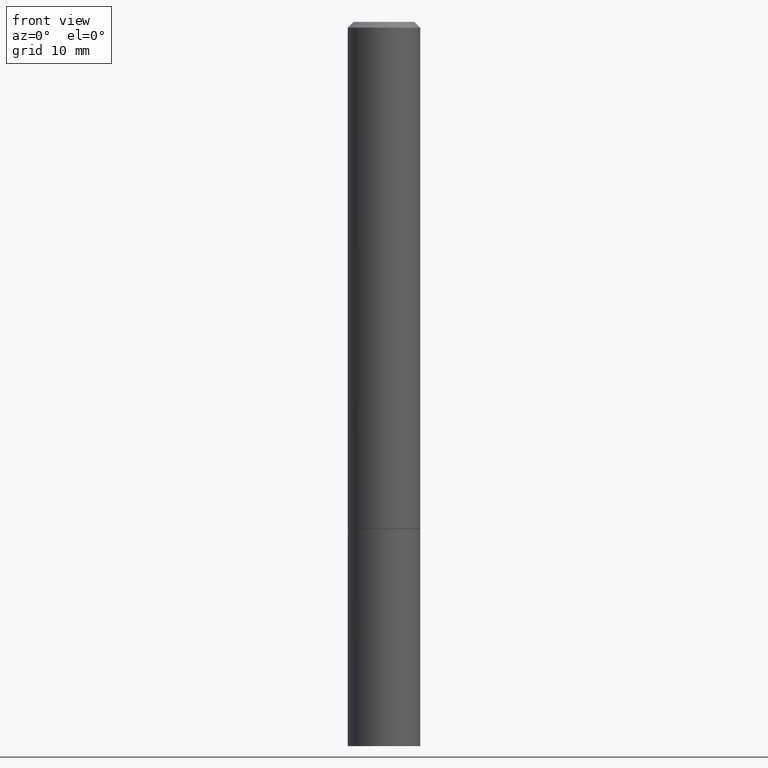
[diagram: clean part render]
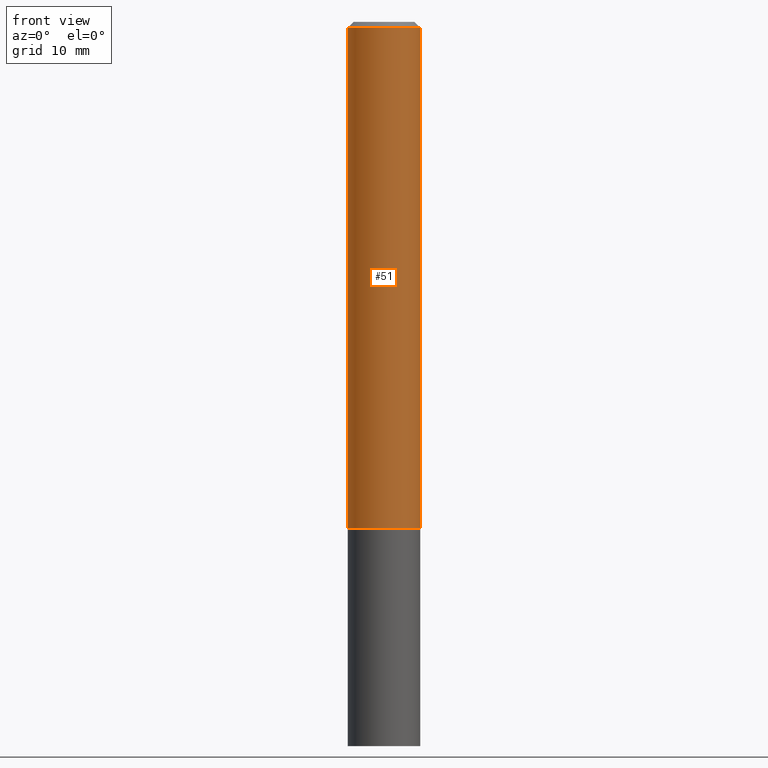
[diagram: same view with one face highlighted and labeled with its STEP entity id]
A machine part, front view. The second image highlights one B-rep face of the part: STEP entity #51.
In plain terms, the highlighted cylindrical surface (edge-blend (fillet) strip) has radius 3.175 mm, axis along (-0, 0, 1).
Its self-contained STEP definition (entity closure, byte-faithful):
#2 = CARTESIAN_POINT ( 'NONE',  ( 4.890937612370281041E-31, -6.982962677686302702E-17, -0.02000000000000003511 ) ) ;
#7 = LINE ( 'NONE', #36, #279 ) ;
#8 = DIRECTION ( 'NONE',  ( -2.445468806185136597E-29, 3.491481338843145583E-15, 1.000000000000000000 ) ) ;
#17 = AXIS2_PLACEMENT_3D ( 'NONE', #210, #41, #212 ) ;
#19 = EDGE_LOOP ( 'NONE', ( #185, #293, #324, #127 ) ) ;
#36 = CARTESIAN_POINT ( 'NONE',  ( -0.1249999999999999029, 8.881784197001245421E-16, -6.148668862818627323E-30 ) ) ;
#38 = DIRECTION ( 'NONE',  ( 1.000000000000000000, -6.982962677686266711E-15, 0.000000000000000000 ) ) ;
#41 = DIRECTION ( 'NONE',  ( -2.445468806185136597E-29, 3.491481338843145583E-15, 1.000000000000000000 ) ) ;
#51 = ADVANCED_FACE ( 'NONE', ( #297 ), #288, .T. ) ;
#52 = CARTESIAN_POINT ( 'NONE',  ( 0.1249999999999997918, -9.273918764983031658E-16, -0.02000000000000003511 ) ) ;
#69 = VERTEX_POINT ( 'NONE', #350 ) ;
#77 = EDGE_CURVE ( 'NONE', #93, #69, #199, .T. ) ;
#93 = VERTEX_POINT ( 'NONE', #106 ) ;
#106 = CARTESIAN_POINT ( 'NONE',  ( -0.1250000000000000278, -2.200036824506634488E-15, -1.749000000000000110 ) ) ;
#127 = ORIENTED_EDGE ( 'NONE', *, *, #222, .F. ) ;
#149 = CARTESIAN_POINT ( 'NONE',  ( 0.000000000000000000, 0.000000000000000000, 0.000000000000000000 ) ) ;
#151 = DIRECTION ( 'NONE',  ( 1.000000000000000000, -6.982962677686266711E-15, 4.876176775795935793E-29 ) ) ;
#185 = ORIENTED_EDGE ( 'NONE', *, *, #274, .F. ) ;
#188 = DIRECTION ( 'NONE',  ( -2.445468806185136877E-29, 3.491481338843145188E-15, 1.000000000000000000 ) ) ;
#199 = CIRCLE ( 'NONE', #17, 0.1250000000000000000 ) ;
#200 = VECTOR ( 'NONE', #250, 39.37007874015748143 ) ;
#206 = VERTEX_POINT ( 'NONE', #323 ) ;
#210 = CARTESIAN_POINT ( 'NONE',  ( 4.277124942017804562E-29, -6.106600861636661664E-15, -1.749000000000000110 ) ) ;
#212 = DIRECTION ( 'NONE',  ( 1.000000000000000000, -6.982962677686270655E-15, 0.000000000000000000 ) ) ;
#222 = EDGE_CURVE ( 'NONE', #206, #344, #287, .T. ) ;
#229 = CARTESIAN_POINT ( 'NONE',  ( 0.1249999999999999029, -8.728703347107826486E-16, 6.095220969744914837E-30 ) ) ;
#250 = DIRECTION ( 'NONE',  ( -2.445468806185136877E-29, 3.491481338843145188E-15, 1.000000000000000000 ) ) ;
#253 = AXIS2_PLACEMENT_3D ( 'NONE', #2, #320, #38 ) ;
#274 = EDGE_CURVE ( 'NONE', #93, #206, #7, .T. ) ;
#279 = VECTOR ( 'NONE', #188, 39.37007874015748143 ) ;
#287 = CIRCLE ( 'NONE', #253, 0.1249999999999997918 ) ;
#288 = CYLINDRICAL_SURFACE ( 'NONE', #318, 0.1249999999999999029 ) ;
#293 = ORIENTED_EDGE ( 'NONE', *, *, #77, .T. ) ;
#297 = FACE_OUTER_BOUND ( 'NONE', #19, .T. ) ;
#311 = LINE ( 'NONE', #229, #200 ) ;
#315 = EDGE_CURVE ( 'NONE', #69, #344, #311, .T. ) ;
#318 = AXIS2_PLACEMENT_3D ( 'NONE', #149, #8, #151 ) ;
#320 = DIRECTION ( 'NONE',  ( -2.445468806185136597E-29, 3.491481338843145583E-15, 1.000000000000000000 ) ) ;
#323 = CARTESIAN_POINT ( 'NONE',  ( -0.1249999999999997918, 8.030407079339188573E-16, -0.02000000000000003511 ) ) ;
#324 = ORIENTED_EDGE ( 'NONE', *, *, #315, .T. ) ;
#344 = VERTEX_POINT ( 'NONE', #52 ) ;
#350 = CARTESIAN_POINT ( 'NONE',  ( 0.1250000000000000000, -6.979471196347445792E-15, -1.749000000000000110 ) ) ;